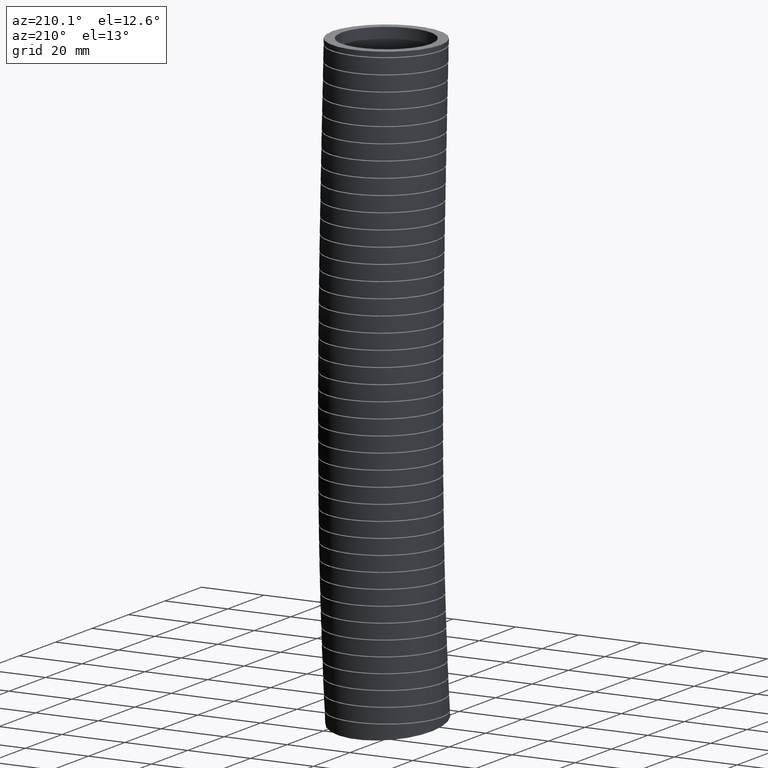
[diagram: clean part render]
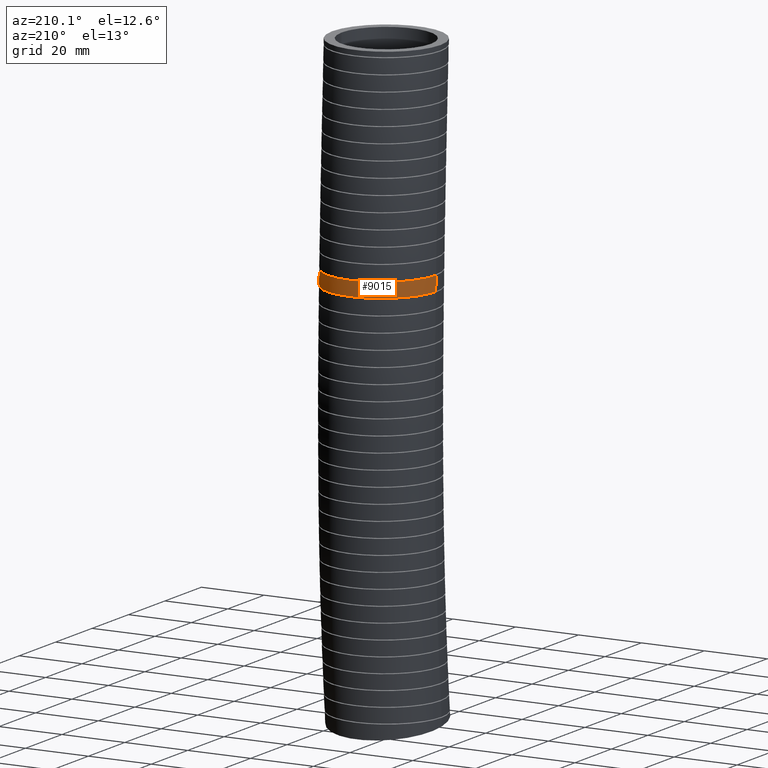
[diagram: same view with one face highlighted and labeled with its STEP entity id]
A machine part, auxiliary view. The second image highlights one B-rep face of the part: STEP entity #9015.
In plain terms, the highlighted face is a freeform B-spline surface patch.
Its self-contained STEP definition (entity closure, byte-faithful):
#485 = VERTEX_POINT ( 'NONE', #1649 ) ;
#508 = VERTEX_POINT ( 'NONE', #1823 ) ;
#541 = EDGE_CURVE ( 'NONE', #508, #545, #1965, .T. ) ;
#545 = VERTEX_POINT ( 'NONE', #1958 ) ;
#558 = EDGE_CURVE ( 'NONE', #485, #561, #2197, .T. ) ;
#561 = VERTEX_POINT ( 'NONE', #2191 ) ;
#1649 = CARTESIAN_POINT ( 'NONE',  ( -0.6799999999999998300, 0.09909115526116382700, -2.538102513792512800 ) ) ;
#1823 = CARTESIAN_POINT ( 'NONE',  ( 0.6799999999999999400, 0.09909115525036216200, -2.538102513600569000 ) ) ;
#1958 = CARTESIAN_POINT ( 'NONE',  ( 0.6799999999999998300, 0.1039401556433501300, -2.718033498715718200 ) ) ;
#1959 = CARTESIAN_POINT ( 'NONE',  ( 0.6799999999999998300, 0.1039401556433501300, -2.718033498715718200 ) ) ;
#1960 = CARTESIAN_POINT ( 'NONE',  ( 0.6799999999999999400, 0.1023968165348685100, -2.658059594578030500 ) ) ;
#1961 = CARTESIAN_POINT ( 'NONE',  ( 0.6799999999999999400, 0.1007788352028511200, -2.598082529761689900 ) ) ;
#1962 = CARTESIAN_POINT ( 'NONE',  ( 0.6799999999999999400, 0.09909115525036216200, -2.538102513600569000 ) ) ;
#1965 = B_SPLINE_CURVE_WITH_KNOTS ( 'NONE', 3,
 ( #1962, #1961, #1960, #1959 ),
 .UNSPECIFIED., .F., .F.,
 ( 4, 4 ),
 ( 0.3346738986594315300, 0.3584117457194493400 ),
 .UNSPECIFIED. ) ;
#2191 = CARTESIAN_POINT ( 'NONE',  ( -0.6799999999999998300, 0.1039401556532292100, -2.718033498907666000 ) ) ;
#2192 = CARTESIAN_POINT ( 'NONE',  ( -0.6799999999999998300, 0.1039401556532292100, -2.718033498907666000 ) ) ;
#2193 = CARTESIAN_POINT ( 'NONE',  ( -0.6800000000000001600, 0.1023968165399707400, -2.658059594770112000 ) ) ;
#2194 = CARTESIAN_POINT ( 'NONE',  ( -0.6800000000000001600, 0.1007788352081074600, -2.598082529953778900 ) ) ;
#2195 = CARTESIAN_POINT ( 'NONE',  ( -0.6799999999999998300, 0.09909115526116382700, -2.538102513792512800 ) ) ;
#2197 = B_SPLINE_CURVE_WITH_KNOTS ( 'NONE', 3,
 ( #2195, #2194, #2193, #2192 ),
 .UNSPECIFIED., .F., .F.,
 ( 4, 4 ),
 ( 0.3346738986847728700, 0.3584117457447905700 ),
 .UNSPECIFIED. ) ;
#3486 = FACE_OUTER_BOUND ( 'NONE', #9010, .T. ) ;
#3518 = CARTESIAN_POINT ( 'NONE',  ( -0.6800000000000000500, -1.360000000000000100, 0.0000000000000000000 ) ) ;
#3519 = CARTESIAN_POINT ( 'NONE',  ( 0.6799999999999998300, -1.377559051196987500, -7.386466342222807800 ) ) ;
#3520 = CARTESIAN_POINT ( 'NONE',  ( 0.6799999999999998300, -1.360997193634168900, -7.204345745797499300 ) ) ;
#3521 = CARTESIAN_POINT ( 'NONE',  ( 0.6800000000000000500, -1.264559801960247100, -6.143882858543539900 ) ) ;
#3522 = CARTESIAN_POINT ( 'NONE',  ( 0.6799999999999998300, -1.194865599480906100, -3.721164621865159700 ) ) ;
#3523 = CARTESIAN_POINT ( 'NONE',  ( 0.6800000000000000500, -1.297703424955836600, -1.403800845789877400 ) ) ;
#3524 = CARTESIAN_POINT ( 'NONE',  ( 0.6800000000000000500, -1.360000000000000100, 0.0000000000000000000 ) ) ;
#3525 = CARTESIAN_POINT ( 'NONE',  ( 0.6799999999999998300, -0.03000000000000002700, -7.570000000000000300 ) ) ;
#3526 = CARTESIAN_POINT ( 'NONE',  ( 0.6799999999999998300, -0.01268304244353373300, -7.380027536167250300 ) ) ;
#3527 = CARTESIAN_POINT ( 'NONE',  ( 0.6799999999999998300, 0.08815119140610085100, -6.273844317744462300 ) ) ;
#3528 = CARTESIAN_POINT ( 'NONE',  ( 0.6799999999999998300, 0.1669887239008314700, -3.753425867331408000 ) ) ;
#3529 = CARTESIAN_POINT ( 'NONE',  ( 0.6799999999999999400, 0.06299611430032937800, -1.415971326882179200 ) ) ;
#3530 = CARTESIAN_POINT ( 'NONE',  ( 0.6799999999999999400, 0.0000000000000000000, 0.0000000000000000000 ) ) ;
#3535 =( BOUNDED_SURFACE ( )  B_SPLINE_SURFACE ( 3, 3, ( 
 ( #3530, #3529, #3528, #3527, #3526, #3525 ),
 ( #3524, #3523, #3522, #3521, #3520, #3519 ),
 ( #3518, #3565, #3564, #3563, #3562, #3561 ),
 ( #3560, #3559, #3558, #3557, #3556, #3555 ),
 ( #3554, #3553, #3552, #3551, #3550, #3549 ),
 ( #3548, #3547, #3546, #3545, #3544, #3543 ),
 ( #3542, #3541, #3540, #3539, #3538, #3537 ) ),
 .UNSPECIFIED., .F., .F., .F. ) 
 B_SPLINE_SURFACE_WITH_KNOTS ( ( 4, 3, 4 ),
 ( 4, 1, 1, 4 ),
 ( 0.0000000000000000000, 0.5000000000000000000, 1.000000000000000000 ),
 ( 0.0000000000000000000, 0.5599999999999998300, 0.9244357691435686200, 1.000000000000000000 ),
 .UNSPECIFIED. ) 
 GEOMETRIC_REPRESENTATION_ITEM ( )  RATIONAL_B_SPLINE_SURFACE ( (
 ( 1.000000000000000000, 1.000000000000000000, 0.9999999999999998900, 1.000000000000000000, 1.000000000000000000, 1.000000000000000000),
 ( 0.3333333333333333100, 0.3333333333333333100, 0.3333333333333333100, 0.3333333333333333100, 0.3333333333333333100, 0.3333333333333333100),
 ( 0.3333333333333333100, 0.3333333333333333100, 0.3333333333333333100, 0.3333333333333333100, 0.3333333333333333100, 0.3333333333333333100),
 ( 1.000000000000000000, 1.000000000000000000, 0.9999999999999998900, 1.000000000000000000, 1.000000000000000000, 1.000000000000000000),
 ( 0.3333333333333333100, 0.3333333333333333100, 0.3333333333333333100, 0.3333333333333333100, 0.3333333333333333100, 0.3333333333333333100),
 ( 0.3333333333333333100, 0.3333333333333333100, 0.3333333333333333100, 0.3333333333333333100, 0.3333333333333333100, 0.3333333333333333100),
 ( 1.000000000000000000, 1.000000000000000000, 0.9999999999999998900, 1.000000000000000000, 1.000000000000000000, 1.000000000000000000) ) ) 
 REPRESENTATION_ITEM ( '' )  SURFACE ( )  );
#3537 = CARTESIAN_POINT ( 'NONE',  ( 0.6799999999999998300, -0.03000000000000002700, -7.570000000000000300 ) ) ;
#3538 = CARTESIAN_POINT ( 'NONE',  ( 0.6799999999999998300, -0.01268304244353373300, -7.380027536167250300 ) ) ;
#3539 = CARTESIAN_POINT ( 'NONE',  ( 0.6799999999999998300, 0.08815119140610085100, -6.273844317744462300 ) ) ;
#3540 = CARTESIAN_POINT ( 'NONE',  ( 0.6799999999999998300, 0.1669887239008314700, -3.753425867331408000 ) ) ;
#3541 = CARTESIAN_POINT ( 'NONE',  ( 0.6799999999999999400, 0.06299611430032937800, -1.415971326882179200 ) ) ;
#3542 = CARTESIAN_POINT ( 'NONE',  ( 0.6799999999999999400, 0.0000000000000000000, 0.0000000000000000000 ) ) ;
#3543 = CARTESIAN_POINT ( 'NONE',  ( 0.6799999999999998300, 1.317559051196987700, -7.753533657777190100 ) ) ;
#3544 = CARTESIAN_POINT ( 'NONE',  ( 0.6799999999999998300, 1.335631108747101300, -7.555709326537000300 ) ) ;
#3545 = CARTESIAN_POINT ( 'NONE',  ( 0.6800000000000000500, 1.440862184772448300, -6.403805776945382000 ) ) ;
#3546 = CARTESIAN_POINT ( 'NONE',  ( 0.6799999999999998300, 1.528843047282568500, -3.785687112797655500 ) ) ;
#3547 = CARTESIAN_POINT ( 'NONE',  ( 0.6800000000000000500, 1.423695653556495700, -1.428141807974481600 ) ) ;
#3548 = CARTESIAN_POINT ( 'NONE',  ( 0.6800000000000000500, 1.360000000000000100, 0.0000000000000000000 ) ) ;
#3549 = CARTESIAN_POINT ( 'NONE',  ( -0.6799999999999997200, 1.317559051196987700, -7.753533657777190100 ) ) ;
#3550 = CARTESIAN_POINT ( 'NONE',  ( -0.6799999999999998300, 1.335631108747101300, -7.555709326537000300 ) ) ;
#3551 = CARTESIAN_POINT ( 'NONE',  ( -0.6799999999999998300, 1.440862184772448300, -6.403805776945382000 ) ) ;
#3552 = CARTESIAN_POINT ( 'NONE',  ( -0.6799999999999993800, 1.528843047282568500, -3.785687112797655500 ) ) ;
#3553 = CARTESIAN_POINT ( 'NONE',  ( -0.6799999999999997200, 1.423695653556495700, -1.428141807974481600 ) ) ;
#3554 = CARTESIAN_POINT ( 'NONE',  ( -0.6799999999999998300, 1.360000000000000100, 0.0000000000000000000 ) ) ;
#3555 = CARTESIAN_POINT ( 'NONE',  ( -0.6799999999999998300, -0.02999999999999994300, -7.570000000000000300 ) ) ;
#3556 = CARTESIAN_POINT ( 'NONE',  ( -0.6799999999999998300, -0.01268304244353365600, -7.380027536167250300 ) ) ;
#3557 = CARTESIAN_POINT ( 'NONE',  ( -0.6799999999999998300, 0.08815119140610093400, -6.273844317744462300 ) ) ;
#3558 = CARTESIAN_POINT ( 'NONE',  ( -0.6799999999999998300, 0.1669887239008315800, -3.753425867331408000 ) ) ;
#3559 = CARTESIAN_POINT ( 'NONE',  ( -0.6799999999999999400, 0.06299611430032946200, -1.415971326882179200 ) ) ;
#3560 = CARTESIAN_POINT ( 'NONE',  ( -0.6799999999999999400, 8.327598234202001900E-017, 0.0000000000000000000 ) ) ;
#3561 = CARTESIAN_POINT ( 'NONE',  ( -0.6800000000000000500, -1.377559051196987500, -7.386466342222807800 ) ) ;
#3562 = CARTESIAN_POINT ( 'NONE',  ( -0.6800000000000000500, -1.360997193634168900, -7.204345745797499300 ) ) ;
#3563 = CARTESIAN_POINT ( 'NONE',  ( -0.6800000000000000500, -1.264559801960247100, -6.143882858543539900 ) ) ;
#3564 = CARTESIAN_POINT ( 'NONE',  ( -0.6799999999999998300, -1.194865599480906100, -3.721164621865159700 ) ) ;
#3565 = CARTESIAN_POINT ( 'NONE',  ( -0.6800000000000000500, -1.297703424955836600, -1.403800845789877400 ) ) ;
#3871 = B_SPLINE_CURVE_WITH_KNOTS ( 'NONE', 3,
 ( #3955, #3954, #3953, #3952, #3951, #3950, #3949, #3948, #3947, #3946, #3945, #3944, #3943, #3942, #3941, #3940, #3939, #3938, #3937, #3936, #3935, #3934, #3933, #3932, #3931, #3930, #3929, #3928, #3927, #3926, #3925, #3924, #3923, #3922, #3921, #3920, #3919, #3918, #3917, #3916, #3915, #3914, #3986, #3985, #3984, #3983, #3982, #3981, #3980 ),
 .UNSPECIFIED., .F., .F.,
 ( 4, 2, 2, 2, 2, 2, 2, 2, 2, 1, 2, 2, 2, 2, 2, 2, 2, 2, 2, 2, 2, 2, 2, 2, 4 ),
 ( 0.0000000000000000000, 0.003374587773880831000, 0.005061881660821246500, 0.006749175547761662000, 0.01012376332164248600, 0.01181105720858289900, 0.01349835109552331200, 0.01687293886940413900, 0.01856023275634454900, 0.02024752664328496500, 0.02193482053022538200, 0.02362211441716579500, 0.02699670219104662400, 0.02868399607798704000, 0.03037128996492745300, 0.03374587773880828600, 0.03543317162574870200, 0.03712046551268911900, 0.04049505328656994400, 0.04386964106045078400, 0.04555693494739118700, 0.04724422883433159600, 0.05061881660821243600, 0.05230611049515284500, 0.05399340438209326200 ),
 .UNSPECIFIED. ) ;
#3914 = CARTESIAN_POINT ( 'NONE',  ( -0.6197056392444099100, 0.3846920594484581300, -2.718033498907667300 ) ) ;
#3915 = CARTESIAN_POINT ( 'NONE',  ( -0.6100549049889083500, 0.4050775590618399000, -2.718033498907667300 ) ) ;
#3916 = CARTESIAN_POINT ( 'NONE',  ( -0.5890018819487591300, 0.4444024392902570800, -2.718033498907667800 ) ) ;
#3917 = CARTESIAN_POINT ( 'NONE',  ( -0.5775723425663341600, 0.4634318096293178500, -2.718033498907666000 ) ) ;
#3918 = CARTESIAN_POINT ( 'NONE',  ( -0.5406308428646546800, 0.5186601118862687000, -2.718033498907666400 ) ) ;
#3919 = CARTESIAN_POINT ( 'NONE',  ( -0.5124332673278941800, 0.5530763462203787100, -2.718033498907666000 ) ) ;
#3920 = CARTESIAN_POINT ( 'NONE',  ( -0.4489347328584620800, 0.6165197376161110100, -2.718033498907666400 ) ) ;
#3921 = CARTESIAN_POINT ( 'NONE',  ( -0.4145874064700595400, 0.6446169675726997100, -2.718033498907666000 ) ) ;
#3922 = CARTESIAN_POINT ( 'NONE',  ( -0.3593167332839395400, 0.6815317538758752800, -2.718033498907666000 ) ) ;
#3923 = CARTESIAN_POINT ( 'NONE',  ( -0.3402636157015376800, 0.6929584046726914300, -2.718033498907666400 ) ) ;
#3924 = CARTESIAN_POINT ( 'NONE',  ( -0.3008674685317508400, 0.7140121930163302300, -2.718033498907666000 ) ) ;
#3925 = CARTESIAN_POINT ( 'NONE',  ( -0.2804870896768275600, 0.7236395525694662200, -2.718033498907667300 ) ) ;
#3926 = CARTESIAN_POINT ( 'NONE',  ( -0.2187430563485160700, 0.7491717343084336500, -2.718033498907666400 ) ) ;
#3927 = CARTESIAN_POINT ( 'NONE',  ( -0.1763567066561527200, 0.7620089575255769600, -2.718033498907666400 ) ) ;
#3928 = CARTESIAN_POINT ( 'NONE',  ( -0.1109523526879651900, 0.7750249027271759500, -2.718033498907666400 ) ) ;
#3929 = CARTESIAN_POINT ( 'NONE',  ( -0.08874481331801471800, 0.7783248966838057800, -2.718033498907666000 ) ) ;
#3930 = CARTESIAN_POINT ( 'NONE',  ( -0.04416560194243093800, 0.7827014219771151200, -2.718033498907666400 ) ) ;
#3931 = CARTESIAN_POINT ( 'NONE',  ( -0.02193494746491890500, 0.7837751575783106200, -2.718033498907666000 ) ) ;
#3932 = CARTESIAN_POINT ( 'NONE',  ( 0.04458540137375365700, 0.7837518320754945900, -2.718033498907666400 ) ) ;
#3933 = CARTESIAN_POINT ( 'NONE',  ( 0.08870511577847638200, 0.7794411429944502200, -2.718033498907664700 ) ) ;
#3934 = CARTESIAN_POINT ( 'NONE',  ( 0.1545346451638541200, 0.7663572380638662400, -2.718033498907664700 ) ) ;
#3935 = CARTESIAN_POINT ( 'NONE',  ( 0.1763525098611982400, 0.7608838672128295200, -2.718033498907666000 ) ) ;
#3936 = CARTESIAN_POINT ( 'NONE',  ( 0.2189209114614106300, 0.7479567037002220500, -2.718033498907666400 ) ) ;
#3937 = CARTESIAN_POINT ( 'NONE',  ( 0.2606574654843540300, 0.7330067348634788900, -2.718033498907667800 ) ) ;
#3938 = CARTESIAN_POINT ( 'NONE',  ( 0.3007527954738354300, 0.7140657984460196900, -2.718033498907667300 ) ) ;
#3939 = CARTESIAN_POINT ( 'NONE',  ( 0.3400149748029621700, 0.6930988879948165600, -2.718033498907666000 ) ) ;
#3940 = CARTESIAN_POINT ( 'NONE',  ( 0.3593322284240032500, 0.6815298831762040000, -2.718033498907666000 ) ) ;
#3941 = CARTESIAN_POINT ( 'NONE',  ( 0.4150939546139104100, 0.6442615687088685300, -2.718033498907666400 ) ) ;
#3942 = CARTESIAN_POINT ( 'NONE',  ( 0.4493362417047921900, 0.6161226006351542300, -2.718033498907665500 ) ) ;
#3943 = CARTESIAN_POINT ( 'NONE',  ( 0.4964041895594485400, 0.5690894895340580200, -2.718033498907664700 ) ) ;
#3944 = CARTESIAN_POINT ( 'NONE',  ( 0.5113724707679238000, 0.5526019241877518900, -2.718033498907666000 ) ) ;
#3945 = CARTESIAN_POINT ( 'NONE',  ( 0.5398205162819316200, 0.5179549007595959400, -2.718033498907667300 ) ) ;
#3946 = CARTESIAN_POINT ( 'NONE',  ( 0.5531657893164667600, 0.4999461335007092700, -2.718033498907667300 ) ) ;
#3947 = CARTESIAN_POINT ( 'NONE',  ( 0.5901894734019078600, 0.4445160967053544100, -2.718033498907666400 ) ) ;
#3948 = CARTESIAN_POINT ( 'NONE',  ( 0.6110842201610002800, 0.4054636444086717800, -2.718033498907667300 ) ) ;
#3949 = CARTESIAN_POINT ( 'NONE',  ( 0.6366933965185792600, 0.3437078503431479400, -2.718033498907666400 ) ) ;
#3950 = CARTESIAN_POINT ( 'NONE',  ( 0.6442943117930934900, 0.3224771514654717300, -2.718033498907665100 ) ) ;
#3951 = CARTESIAN_POINT ( 'NONE',  ( 0.6572442487130433200, 0.2797590654294809800, -2.718033498907667300 ) ) ;
#3952 = CARTESIAN_POINT ( 'NONE',  ( 0.6626295956966561400, 0.2582144458783861600, -2.718033498907666400 ) ) ;
#3953 = CARTESIAN_POINT ( 'NONE',  ( 0.6755897032602368200, 0.1930362787189907300, -2.718033498907666400 ) ) ;
#3954 = CARTESIAN_POINT ( 'NONE',  ( 0.6799999999999997200, 0.1488637822726544800, -2.718033498715718200 ) ) ;
#3955 = CARTESIAN_POINT ( 'NONE',  ( 0.6799999999999998300, 0.1039401556433501300, -2.718033498715718200 ) ) ;
#3980 = CARTESIAN_POINT ( 'NONE',  ( -0.6799999999999998300, 0.1039401556532292100, -2.718033498907666000 ) ) ;
#3981 = CARTESIAN_POINT ( 'NONE',  ( -0.6799999999999999400, 0.1261277390154055800, -2.718033498907667300 ) ) ;
#3982 = CARTESIAN_POINT ( 'NONE',  ( -0.6789162957027680100, 0.1483841641013131100, -2.718033498907665500 ) ) ;
#3983 = CARTESIAN_POINT ( 'NONE',  ( -0.6745078380429212500, 0.1930393756912961400, -2.718033498907665500 ) ) ;
#3984 = CARTESIAN_POINT ( 'NONE',  ( -0.6712057304927543400, 0.2151601457834692300, -2.718033498907666000 ) ) ;
#3985 = CARTESIAN_POINT ( 'NONE',  ( -0.6581678792793498300, 0.2804981111714114400, -2.718033498907666400 ) ) ;
#3986 = CARTESIAN_POINT ( 'NONE',  ( -0.6453120549160554800, 0.3228864853058935900, -2.718033498907666000 ) ) ;
#3987 = CARTESIAN_POINT ( 'NONE',  ( 0.4962967223262715300, 0.5643886959614026200, -2.538102513792515100 ) ) ;
#3988 = CARTESIAN_POINT ( 'NONE',  ( 0.4490536258214181100, 0.6115672745353698500, -2.538102513792514600 ) ) ;
#3989 = CARTESIAN_POINT ( 'NONE',  ( 0.4148120352510179500, 0.6396441529209069300, -2.538102513792513700 ) ) ;
#3990 = CARTESIAN_POINT ( 'NONE',  ( 0.3593402923040872600, 0.6767084178282000200, -2.538102513792513700 ) ) ;
#3991 = CARTESIAN_POINT ( 'NONE',  ( 0.3400560214368322200, 0.6882685824324975600, -2.538102513792510200 ) ) ;
#3992 = CARTESIAN_POINT ( 'NONE',  ( 0.3005808954478718100, 0.7093450026873444600, -2.538102513792511100 ) ) ;
#3993 = CARTESIAN_POINT ( 'NONE',  ( 0.2804662971221218400, 0.7188358844027662500, -2.538102513792510200 ) ) ;
#3994 = CARTESIAN_POINT ( 'NONE',  ( 0.2190230201353612100, 0.7442543893888504700, -2.538102513792512800 ) ) ;
#3995 = CARTESIAN_POINT ( 'NONE',  ( 0.1766054014732061100, 0.7571571560808995100, -2.538102513792513700 ) ) ;
#3996 = CARTESIAN_POINT ( 'NONE',  ( 0.1107289152455352300, 0.7702610963318885500, -2.538102513792512400 ) ) ;
#3997 = CARTESIAN_POINT ( 'NONE',  ( 0.08851152588517396900, 0.7735442052701021500, -2.538102513792512400 ) ) ;
#3998 = CARTESIAN_POINT ( 'NONE',  ( 0.04426481516668826600, 0.7778839346046142500, -2.538102513792513300 ) ) ;
#3999 = CARTESIAN_POINT ( 'NONE',  ( 2.319996256751774300E-007, 0.7800405446007084900, -2.538102513792510600 ) ) ;
#4000 = CARTESIAN_POINT ( 'NONE',  ( -0.04429967097854194800, 0.7778828401759065900, -2.538102513792515100 ) ) ;
#4001 = CARTESIAN_POINT ( 'NONE',  ( -0.08861753269229732900, 0.7735314764558814900, -2.538102513792514600 ) ) ;
#4002 = CARTESIAN_POINT ( 'NONE',  ( -0.1109076086594483200, 0.7702298531203589600, -2.538102513792512400 ) ) ;
#4003 = CARTESIAN_POINT ( 'NONE',  ( -0.1766271027573698100, 0.7571441981785426200, -2.538102513792512400 ) ) ;
#4004 = CARTESIAN_POINT ( 'NONE',  ( -0.2190185763245415500, 0.7442586747164214900, -2.538102513792511900 ) ) ;
#4005 = CARTESIAN_POINT ( 'NONE',  ( -0.2805165749321744100, 0.7188138600292142100, -2.538102513792511900 ) ) ;
#4006 = CARTESIAN_POINT ( 'NONE',  ( -0.3006652309809207900, 0.7093055879599345900, -2.538102513792510600 ) ) ;
#4007 = CARTESIAN_POINT ( 'NONE',  ( -0.3402374082143197500, 0.6881660858215681300, -2.538102513792511100 ) ) ;
#4008 = CARTESIAN_POINT ( 'NONE',  ( -0.3594167594472557100, 0.6766596489951687300, -2.538102513792513700 ) ) ;
#4009 = CARTESIAN_POINT ( 'NONE',  ( -0.4148068817586941200, 0.6396429393532189200, -2.538102513792513300 ) ) ;
#4010 = CARTESIAN_POINT ( 'NONE',  ( -0.4490614605961260100, 0.6115675696261535500, -2.538102513792515100 ) ) ;
#4011 = CARTESIAN_POINT ( 'NONE',  ( -0.4963858657863726200, 0.5642956026724487200, -2.538102513792514600 ) ) ;
#4012 = CARTESIAN_POINT ( 'NONE',  ( -0.5115355951002755800, 0.5475902911240130300, -2.538102513792512400 ) ) ;
#4013 = CARTESIAN_POINT ( 'NONE',  ( -0.5398316090035323300, 0.5131120422208929100, -2.538102513792513300 ) ) ;
#4014 = CARTESIAN_POINT ( 'NONE',  ( -0.5530496419885303500, 0.4952807208189349300, -2.538102513792512800 ) ) ;
#4015 = CARTESIAN_POINT ( 'NONE',  ( -0.5899716069653239100, 0.4400469644597065400, -2.538102513792512800 ) ) ;
#4016 = CARTESIAN_POINT ( 'NONE',  ( -0.6110006567803735200, 0.4008486927124991800, -2.538102513792515500 ) ) ;
#4017 = CARTESIAN_POINT ( 'NONE',  ( -0.6453709276066569300, 0.3179345221336544700, -2.538102513792514600 ) ) ;
#4018 = CARTESIAN_POINT ( 'NONE',  ( -0.6582133722142627900, 0.2754620391654381000, -2.538102513792512800 ) ) ;
#4019 = CARTESIAN_POINT ( 'NONE',  ( -0.6712089138115436800, 0.2102877164977758300, -2.538102513792512800 ) ) ;
#4020 = CARTESIAN_POINT ( 'NONE',  ( -0.6744883643164769600, 0.1883168733727210400, -2.538102513792513700 ) ) ;
#4021 = CARTESIAN_POINT ( 'NONE',  ( -0.6788909167734895600, 0.1438709948111409100, -2.538102513792512800 ) ) ;
#4022 = CARTESIAN_POINT ( 'NONE',  ( -0.6799999999999998300, 0.1213605604320568300, -2.538102513792512800 ) ) ;
#4023 = CARTESIAN_POINT ( 'NONE',  ( -0.6799999999999998300, 0.09909115526116382700, -2.538102513792512800 ) ) ;
#4024 = B_SPLINE_CURVE_WITH_KNOTS ( 'NONE', 3,
 ( #4023, #4022, #4021, #4020, #4019, #4018, #4017, #4016, #4015, #4014, #4013, #4012, #4011, #4010, #4009, #4008, #4007, #4006, #4005, #4004, #4003, #4002, #4001, #4000, #3999, #3998, #3997, #3996, #3995, #3994, #3993, #3992, #3991, #3990, #3989, #3988, #3987, #4069, #4068, #4067, #4066, #4065, #4064, #4063, #4062, #4061, #4060, #4059, #4058, #4057, #4056 ),
 .UNSPECIFIED., .F., .F.,
 ( 4, 2, 2, 2, 2, 2, 2, 2, 2, 2, 2, 2, 1, 2, 2, 2, 2, 2, 2, 2, 2, 2, 2, 2, 2, 4 ),
 ( 0.05457203556587061200, 0.05627751826347089000, 0.05798300096107117400, 0.06139396635627172900, 0.06480493175147229700, 0.06651041444907257500, 0.06821589714667285200, 0.07162686254187340700, 0.07333234523947368400, 0.07503782793707396100, 0.07844879333227451600, 0.08015427602987479400, 0.08185975872747508500, 0.08356524142507536200, 0.08527072412267564000, 0.08868168951787619400, 0.09038717221547648600, 0.09209265491307677700, 0.09550362030827733200, 0.09720910300587759500, 0.09891458570347787200, 0.1023255510986784300, 0.1040310337962787000, 0.1057365164938790000, 0.1074419991914792700, 0.1091474818890795500 ),
 .UNSPECIFIED. ) ;
#4056 = CARTESIAN_POINT ( 'NONE',  ( 0.6799999999999999400, 0.09909115525036216200, -2.538102513600569000 ) ) ;
#4057 = CARTESIAN_POINT ( 'NONE',  ( 0.6800000000000001600, 0.1215503901877233300, -2.538102513600569000 ) ) ;
#4058 = CARTESIAN_POINT ( 'NONE',  ( 0.6788792844003706000, 0.1440238792914954300, -2.538102513792515100 ) ) ;
#4059 = CARTESIAN_POINT ( 'NONE',  ( 0.6744789169745134500, 0.1883766283614452000, -2.538102513792513700 ) ) ;
#4060 = CARTESIAN_POINT ( 'NONE',  ( 0.6712031921186624200, 0.2103204028623071900, -2.538102513792510600 ) ) ;
#4061 = CARTESIAN_POINT ( 'NONE',  ( 0.6625415647367175500, 0.2537515979613366700, -2.538102513792512400 ) ) ;
#4062 = CARTESIAN_POINT ( 'NONE',  ( 0.6571556133977006800, 0.2752390080030622200, -2.538102513792514600 ) ) ;
#4063 = CARTESIAN_POINT ( 'NONE',  ( 0.6442530875436771600, 0.3177530525720870200, -2.538102513792513700 ) ) ;
#4064 = CARTESIAN_POINT ( 'NONE',  ( 0.6367083552273598000, 0.3388469008726713300, -2.538102513792511100 ) ) ;
#4065 = CARTESIAN_POINT ( 'NONE',  ( 0.6109402745092983300, 0.4009642661244099400, -2.538102513792511100 ) ) ;
#4066 = CARTESIAN_POINT ( 'NONE',  ( 0.5899715111047175700, 0.4400500045624289300, -2.538102513792510600 ) ) ;
#4067 = CARTESIAN_POINT ( 'NONE',  ( 0.5530290956725822900, 0.4953100077100028900, -2.538102513792512400 ) ) ;
#4068 = CARTESIAN_POINT ( 'NONE',  ( 0.5397933807671652100, 0.5131644642829082900, -2.538102513792513700 ) ) ;
#4069 = CARTESIAN_POINT ( 'NONE',  ( 0.5114304057595990800, 0.5477125915132889900, -2.538102513792514600 ) ) ;
#9009 = ORIENTED_EDGE ( 'NONE', *, *, #558, .F. ) ;
#9010 = EDGE_LOOP ( 'NONE', ( #9009, #9058, #9051, #9055 ) ) ;
#9015 = ADVANCED_FACE ( 'NONE', ( #3486 ), #3535, .T. ) ;
#9050 = EDGE_CURVE ( 'NONE', #545, #561, #3871, .T. ) ;
#9051 = ORIENTED_EDGE ( 'NONE', *, *, #541, .T. ) ;
#9055 = ORIENTED_EDGE ( 'NONE', *, *, #9050, .T. ) ;
#9058 = ORIENTED_EDGE ( 'NONE', *, *, #9070, .T. ) ;
#9070 = EDGE_CURVE ( 'NONE', #485, #508, #4024, .T. ) ;